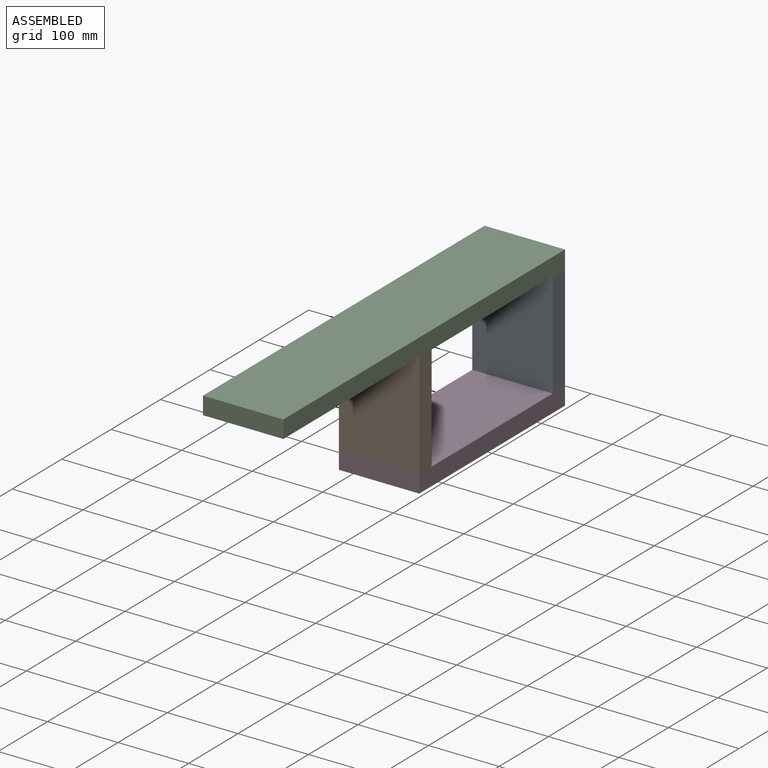
[diagram: assembled view]
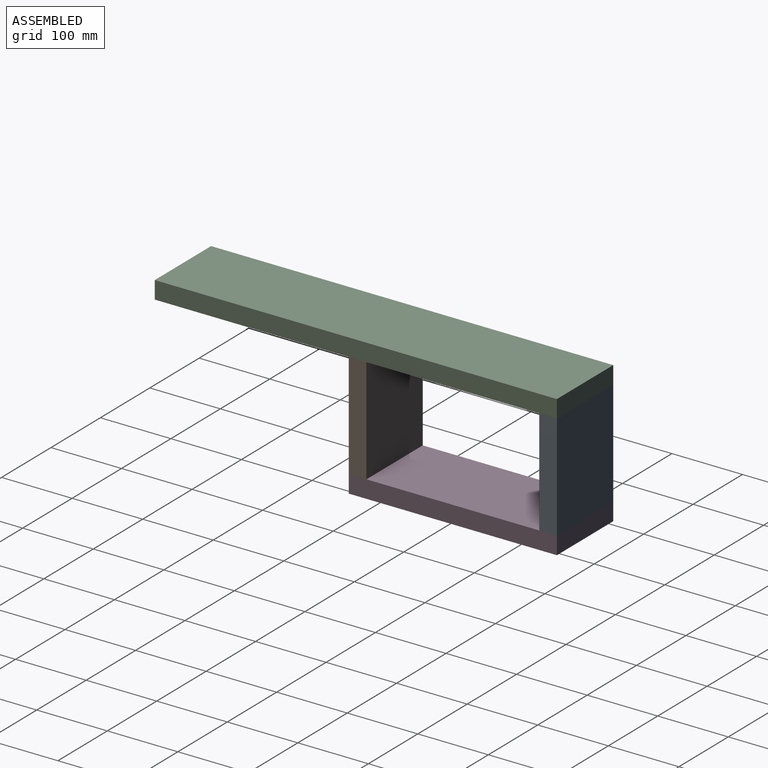
[diagram: assembled view, second angle]
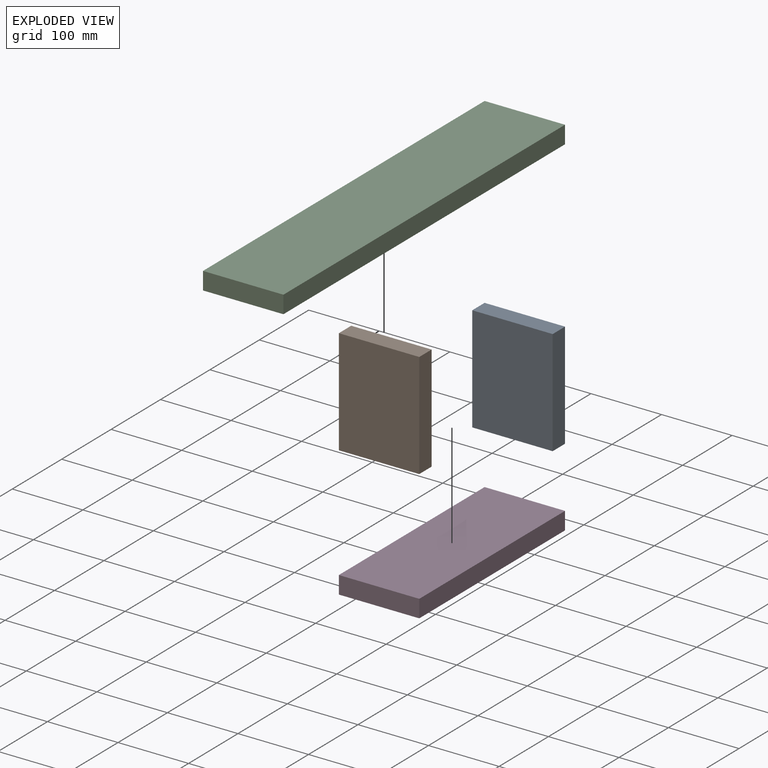
[diagram: exploded view]
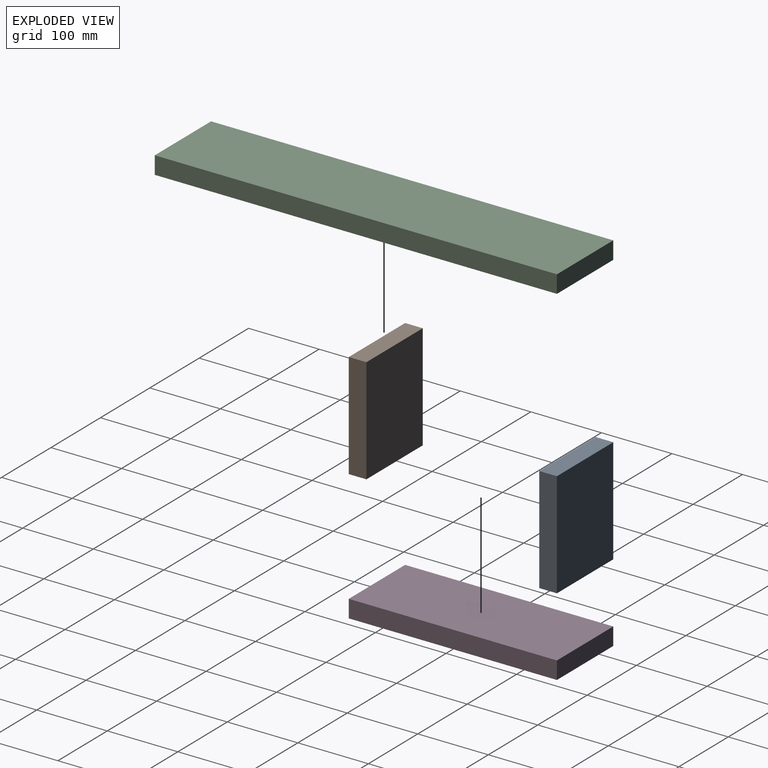
[diagram: exploded view, second angle]
ASSEMBLY  parts=4 mates=3
PART A: 6 faces, bbox 114x25x150 mm
  f0: plane 114x25mm, normal (0,0,1), area 2850mm2, adj f1,f3,f4,f5
  f1: plane 150x25mm, normal (-1,0,0), area 3750mm2, adj f0,f2,f4,f5
  f2: plane 114x25mm, normal (0,0,-1), area 2850mm2, adj f1,f3,f4,f5
  f3: plane 150x25mm, normal (1,0,0), area 3750mm2, adj f0,f2,f4,f5
  f4: plane 150x114mm, normal (0,-1,0), area 17100mm2, adj f0,f1,f2,f3
  f5: plane 150x114mm, normal (0,1,0), area 17100mm2, adj f0,f1,f2,f3
PART B: same geometry as A
PART C: 6 faces, bbox 114x25x570 mm
  f0: plane 570x25mm, normal (1,0,0), area 14250mm2, adj f1,f3,f4,f5
  f1: plane 114x25mm, normal (0,0,1), area 2850mm2, adj f0,f2,f4,f5
  f2: plane 570x25mm, normal (-1,0,0), area 14250mm2, adj f1,f3,f4,f5
  f3: plane 114x25mm, normal (0,0,-1), area 2850mm2, adj f0,f2,f4,f5
  f4: plane 570x114mm, normal (0,-1,0), area 64980mm2, adj f0,f1,f2,f3
  f5: plane 570x114mm, normal (0,1,0), area 64980mm2, adj f0,f1,f2,f3
PART D: 6 faces, bbox 114x25x295 mm
  f0: plane 114x25mm, normal (0,0,1), area 2850mm2, adj f1,f3,f4,f5
  f1: plane 295x25mm, normal (-1,0,0), area 7375mm2, adj f0,f2,f4,f5
  f2: plane 114x25mm, normal (0,0,-1), area 2850mm2, adj f1,f3,f4,f5
  f3: plane 295x25mm, normal (1,0,0), area 7375mm2, adj f0,f2,f4,f5
  f4: plane 295x114mm, normal (0,-1,0), area 33630mm2, adj f0,f1,f2,f3
  f5: plane 295x114mm, normal (0,1,0), area 33630mm2, adj f0,f1,f2,f3
PLACE A t=(-674.18,158.79,15.53)mm
PLACE B t=(-674.18,-111.21,15.53)mm
PLACE C rot(axis=(-1,0,0),90deg) t=(32.87,-275.43,126.75)mm
PLACE D rot(axis=(1,0,0),90deg) t=(-334.56,70.01,-23.25)mm
MATE fastened C.f5 <-> A.f0  axis (0,0,-1) through (-54.75,158.79,126.75)mm
MATE fastened D.f5 <-> B.f2  axis (0,0,1) through (-54.75,-136.21,-23.25)mm
MATE fastened D.f5 <-> A.f2  axis (0,0,1) through (-54.75,158.79,-23.25)mm
